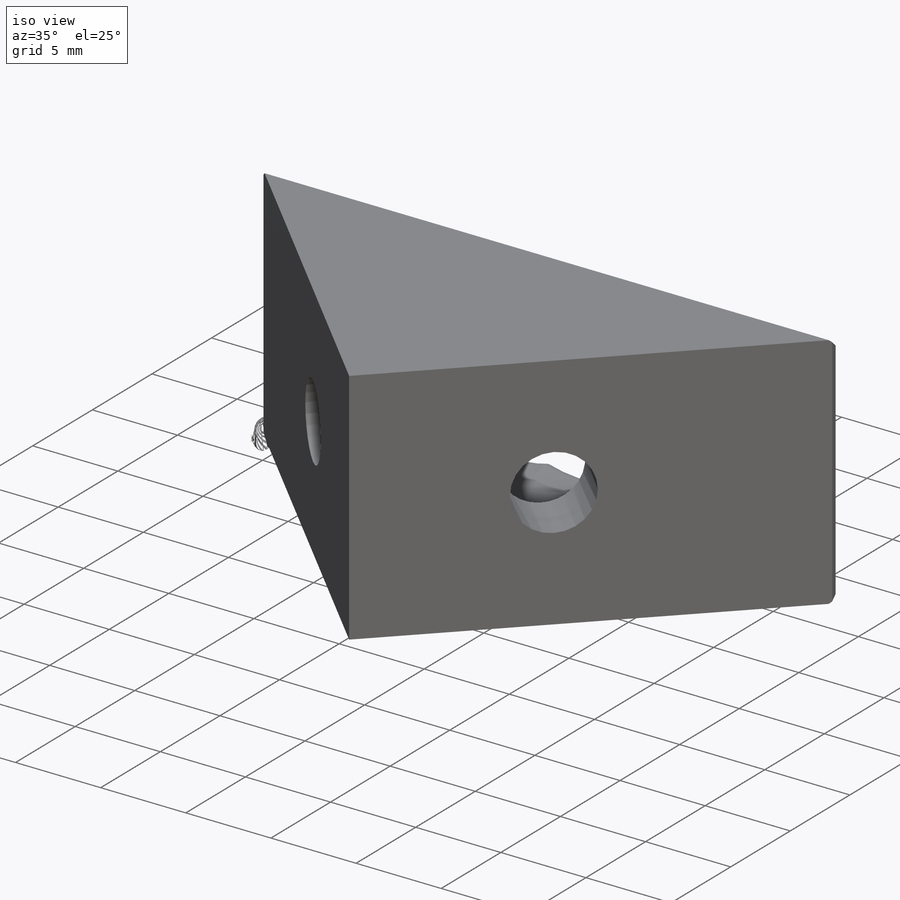
[diagram: iso view]
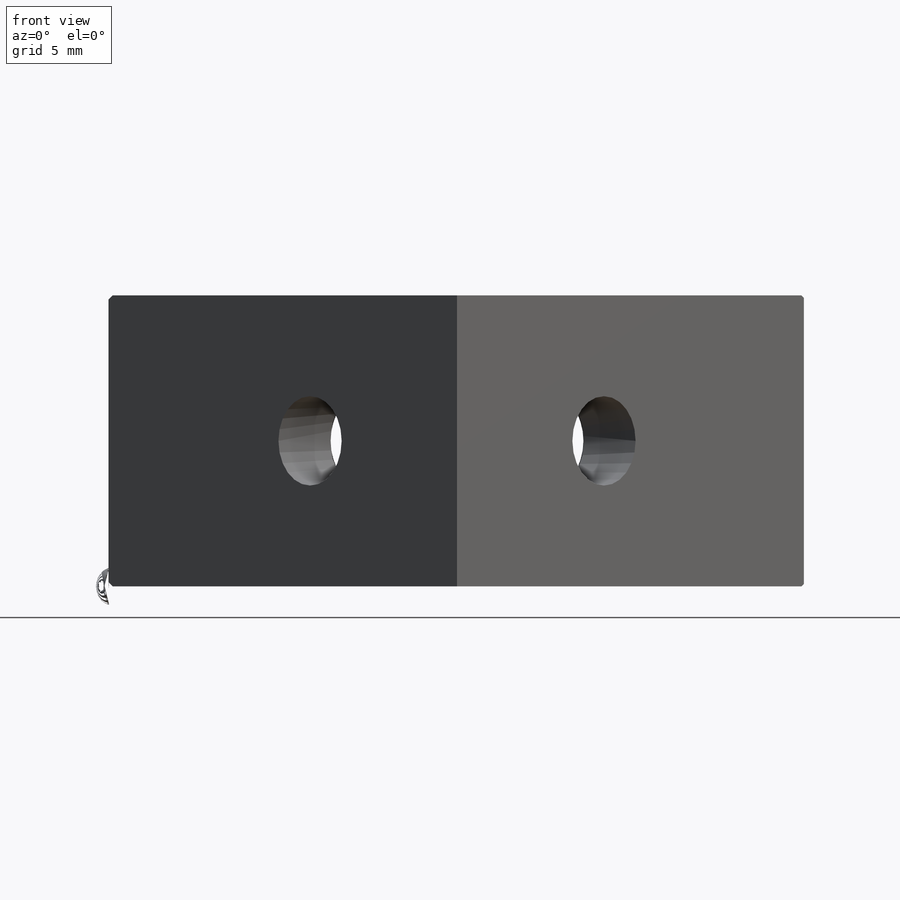
[diagram: front view]
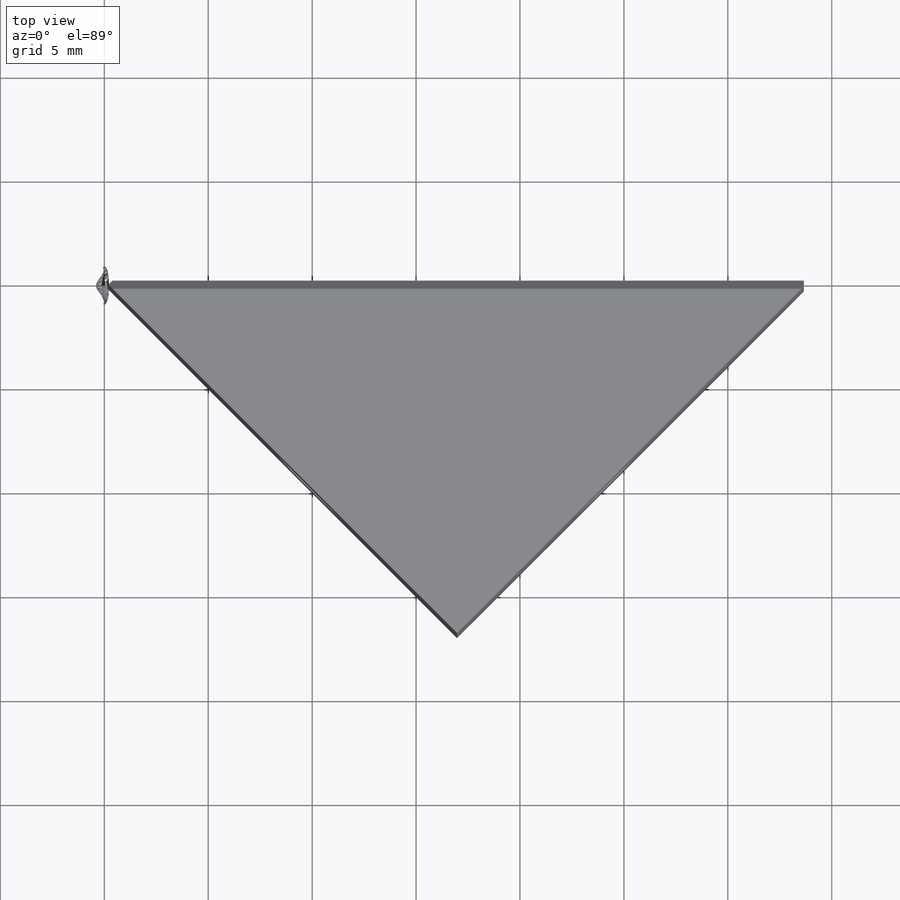
[diagram: top view]
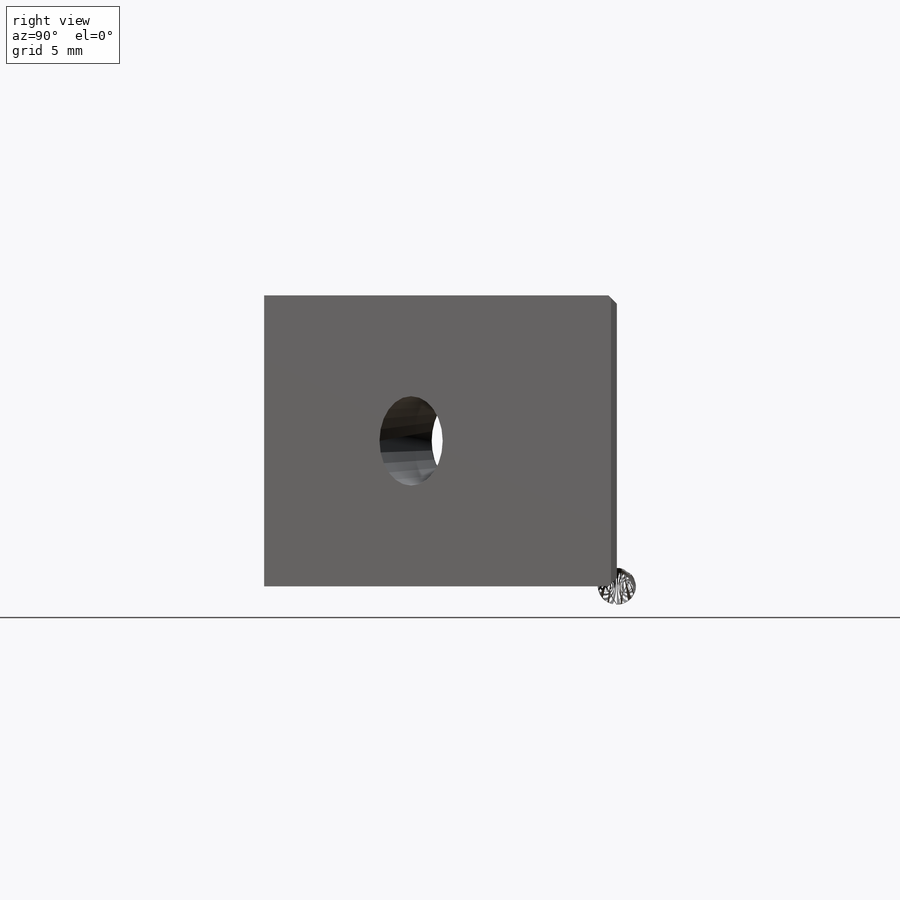
[diagram: right view]
SOLIDWORKS PART (.sldprt)
format: sldprt  version: not decoded by parser v0  size: 244,736 bytes
history: native  units: mm
features: sketch x3, cut_extrude x2, chamfer x2, material x1, extrude x1, plane x1, mirror x1, fillet x1 (+13 scaffold rows collapsed)
feature tree (25):
  scaffold x13  (default folders/planes/origin — collapsed)
  material  "Custom Plastic"
  sketch  "Sketch1"  dims[D1=24.0mm]
  extrude  "Boss-Extrude1"  Depth=14mm
  sketch  "Sketch2"  dims[D1=4.3mm D2=10.0mm]
  cut_extrude  "Cut-Extrude1"  [1 undecoded]
  sketch  "Sketch3"  dims[D1=8.6mm]
  cut_extrude  "Cut-Extrude2"  Depth=5.6mm
  plane  "Plane1"
  mirror  "Mirror1"
  chamfer  "Chamfer1"  Distance=2.1mm Angle=45deg
  chamfer  "Chamfer2"  Distance=0.4mm Angle=45deg
  fillet  "Fillet1"  Radius=0.5mm
decode coverage: 8 of 10 modeling features carry decoded parameters
note: 1 parameter value undecoded
note: suppression state not decoded; provenance and decode notes live in map.json
